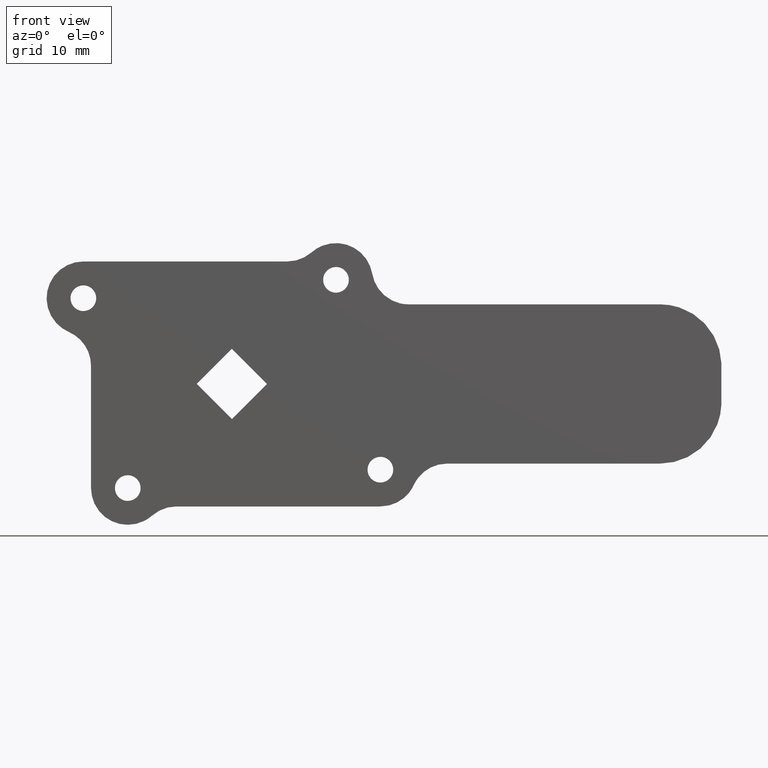
[diagram: clean part render]
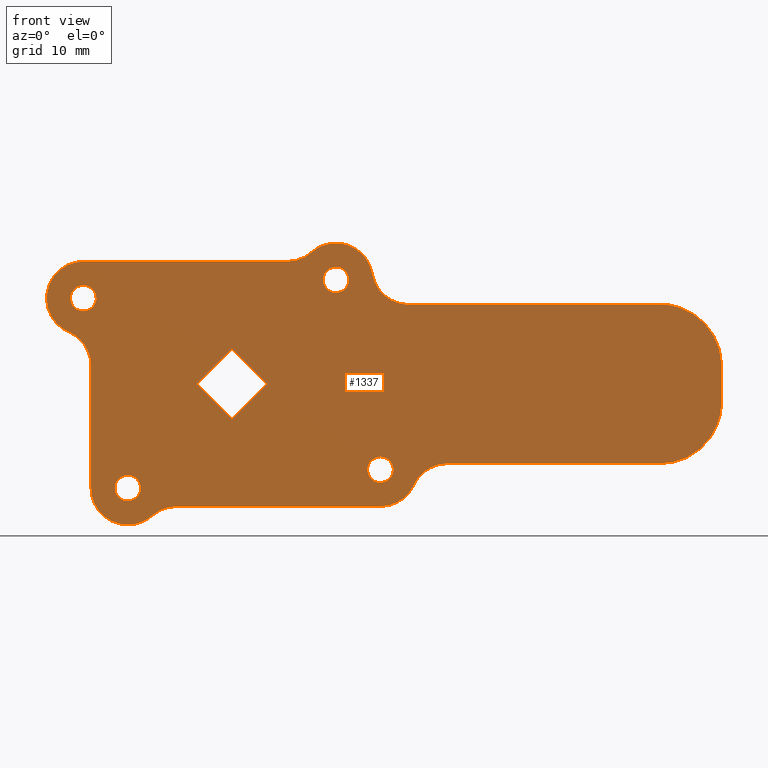
[diagram: same view with one face highlighted and labeled with its STEP entity id]
A machine part, front view. The second image highlights one B-rep face of the part: STEP entity #1337.
In plain terms, the highlighted face is a freeform B-spline surface patch.
Its self-contained STEP definition (entity closure, byte-faithful):
#96=CARTESIAN_POINT('',(19.093526400827368,-3.200000000000000,16.835235898816560));
#97=VERTEX_POINT('',#96);
#103=CARTESIAN_POINT('',(17.0,-3.200000000000000,19.100000000000001));
#104=VERTEX_POINT('',#103);
#105=CARTESIAN_POINT('',(19.093526400827368,-3.200000000000000,16.835235898816556));
#106=CARTESIAN_POINT('',(19.100000000000005,-3.200000000000001,16.917490775128208));
#107=CARTESIAN_POINT('',(19.100000000000001,-3.200000000000000,17.0));
#108=CARTESIAN_POINT('',(19.100000000000001,-3.200000000000000,19.100000000000001));
#109=CARTESIAN_POINT('',(17.0,-3.200000000000000,19.100000000000001));
#117=(BOUNDED_CURVE()B_SPLINE_CURVE(2,(#105,#106,#107,#108,#109),.UNSPECIFIED.,.F.,.U.)B_SPLINE_CURVE_WITH_KNOTS((3,2,3),(0.736331300607388,0.750000000000000,1.0),.UNSPECIFIED.)CURVE()GEOMETRIC_REPRESENTATION_ITEM()RATIONAL_B_SPLINE_CURVE((0.969723356118853,0.983986122551618,1.0,0.707106781186548,1.0))REPRESENTATION_ITEM(''));
#118=EDGE_CURVE('',#97,#104,#117,.T.);
#120=CARTESIAN_POINT('',(14.906473599172630,-3.200000000000000,17.164764101183440));
#121=VERTEX_POINT('',#120);
#122=CARTESIAN_POINT('',(17.0,-3.200000000000000,19.100000000000001));
#123=CARTESIAN_POINT('',(15.058779967806050,-3.200000000000000,19.099999999999994));
#124=CARTESIAN_POINT('',(14.906473599172630,-3.200000000000001,17.164764101183444));
#132=(BOUNDED_CURVE()B_SPLINE_CURVE(2,(#122,#123,#124),.UNSPECIFIED.,.F.,.U.)B_SPLINE_CURVE_WITH_KNOTS((3,3),(0.0,0.236331300607388),.UNSPECIFIED.)CURVE()GEOMETRIC_REPRESENTATION_ITEM()RATIONAL_B_SPLINE_CURVE((1.0,0.723120658634930,0.969723356118852))REPRESENTATION_ITEM(''));
#133=EDGE_CURVE('',#104,#121,#132,.T.);
#179=CARTESIAN_POINT('',(17.0,-3.200000000000000,14.900000000000000));
#180=VERTEX_POINT('',#179);
#181=CARTESIAN_POINT('',(14.906473599172630,-3.200000000000001,17.164764101183444));
#182=CARTESIAN_POINT('',(14.899999999999999,-3.200000000000000,17.082509224871799));
#183=CARTESIAN_POINT('',(14.900000000000000,-3.200000000000000,17.0));
#184=CARTESIAN_POINT('',(14.900000000000002,-3.200000000000000,14.900000000000002));
#185=CARTESIAN_POINT('',(17.0,-3.200000000000000,14.900000000000000));
#193=(BOUNDED_CURVE()B_SPLINE_CURVE(2,(#181,#182,#183,#184,#185),.UNSPECIFIED.,.F.,.U.)B_SPLINE_CURVE_WITH_KNOTS((3,2,3),(0.236331300607388,0.250000000000000,0.500000000000000),.UNSPECIFIED.)CURVE()GEOMETRIC_REPRESENTATION_ITEM()RATIONAL_B_SPLINE_CURVE((0.969723356118852,0.983986122551618,1.0,0.707106781186548,1.0))REPRESENTATION_ITEM(''));
#194=EDGE_CURVE('',#121,#180,#193,.T.);
#196=CARTESIAN_POINT('',(17.0,-3.200000000000000,14.900000000000000));
#197=CARTESIAN_POINT('',(18.941220032193968,-3.200000000000000,14.900000000000002));
#198=CARTESIAN_POINT('',(19.093526400827372,-3.200000000000000,16.835235898816553));
#206=(BOUNDED_CURVE()B_SPLINE_CURVE(2,(#196,#197,#198),.UNSPECIFIED.,.F.,.U.)B_SPLINE_CURVE_WITH_KNOTS((3,3),(0.500000000000000,0.736331300607389),.UNSPECIFIED.)CURVE()GEOMETRIC_REPRESENTATION_ITEM()RATIONAL_B_SPLINE_CURVE((1.0,0.723120658634929,0.969723356118853))REPRESENTATION_ITEM(''));
#207=EDGE_CURVE('',#180,#97,#206,.T.);
#278=CARTESIAN_POINT('',(-14.906473599172630,-3.200000000000000,-17.164764101183440));
#279=VERTEX_POINT('',#278);
#285=CARTESIAN_POINT('',(-17.0,-3.200000000000000,-14.900000000000000));
#286=VERTEX_POINT('',#285);
#287=CARTESIAN_POINT('',(-14.906473599172626,-3.200000000000000,-17.164764101183447));
#288=CARTESIAN_POINT('',(-14.900000000000006,-3.199999999999999,-17.082509224871796));
#289=CARTESIAN_POINT('',(-14.900000000000000,-3.200000000000000,-17.0));
#290=CARTESIAN_POINT('',(-14.900000000000002,-3.200000000000000,-14.900000000000002));
#291=CARTESIAN_POINT('',(-17.0,-3.200000000000000,-14.900000000000000));
#299=(BOUNDED_CURVE()B_SPLINE_CURVE(2,(#287,#288,#289,#290,#291),.UNSPECIFIED.,.F.,.U.)B_SPLINE_CURVE_WITH_KNOTS((3,2,3),(0.736331300607388,0.750000000000000,1.0),.UNSPECIFIED.)CURVE()GEOMETRIC_REPRESENTATION_ITEM()RATIONAL_B_SPLINE_CURVE((0.969723356118852,0.983986122551618,1.0,0.707106781186548,1.0))REPRESENTATION_ITEM(''));
#300=EDGE_CURVE('',#279,#286,#299,.T.);
#302=CARTESIAN_POINT('',(-19.093526400827368,-3.200000000000000,-16.835235898816560));
#303=VERTEX_POINT('',#302);
#304=CARTESIAN_POINT('',(-17.0,-3.200000000000000,-14.900000000000000));
#305=CARTESIAN_POINT('',(-18.941220032193957,-3.199999999999999,-14.900000000000009));
#306=CARTESIAN_POINT('',(-19.093526400827376,-3.200000000000000,-16.835235898816556));
#314=(BOUNDED_CURVE()B_SPLINE_CURVE(2,(#304,#305,#306),.UNSPECIFIED.,.F.,.U.)B_SPLINE_CURVE_WITH_KNOTS((3,3),(0.0,0.236331300607388),.UNSPECIFIED.)CURVE()GEOMETRIC_REPRESENTATION_ITEM()RATIONAL_B_SPLINE_CURVE((1.0,0.723120658634930,0.969723356118852))REPRESENTATION_ITEM(''));
#315=EDGE_CURVE('',#286,#303,#314,.T.);
#361=CARTESIAN_POINT('',(-17.0,-3.200000000000000,-19.100000000000001));
#362=VERTEX_POINT('',#361);
#363=CARTESIAN_POINT('',(-19.093526400827376,-3.200000000000000,-16.835235898816556));
#364=CARTESIAN_POINT('',(-19.100000000000009,-3.200000000000000,-16.917490775128211));
#365=CARTESIAN_POINT('',(-19.100000000000001,-3.200000000000000,-17.0));
#366=CARTESIAN_POINT('',(-19.100000000000001,-3.200000000000000,-19.100000000000001));
#367=CARTESIAN_POINT('',(-17.0,-3.200000000000000,-19.100000000000001));
#375=(BOUNDED_CURVE()B_SPLINE_CURVE(2,(#363,#364,#365,#366,#367),.UNSPECIFIED.,.F.,.U.)B_SPLINE_CURVE_WITH_KNOTS((3,2,3),(0.236331300607388,0.250000000000000,0.500000000000000),.UNSPECIFIED.)CURVE()GEOMETRIC_REPRESENTATION_ITEM()RATIONAL_B_SPLINE_CURVE((0.969723356118852,0.983986122551618,1.0,0.707106781186548,1.0))REPRESENTATION_ITEM(''));
#376=EDGE_CURVE('',#303,#362,#375,.T.);
#378=CARTESIAN_POINT('',(-17.0,-3.200000000000000,-19.100000000000001));
#379=CARTESIAN_POINT('',(-15.058779967806034,-3.200000000000000,-19.100000000000001));
#380=CARTESIAN_POINT('',(-14.906473599172632,-3.200000000000000,-17.164764101183440));
#388=(BOUNDED_CURVE()B_SPLINE_CURVE(2,(#378,#379,#380),.UNSPECIFIED.,.F.,.U.)B_SPLINE_CURVE_WITH_KNOTS((3,3),(0.500000000000000,0.736331300607389),.UNSPECIFIED.)CURVE()GEOMETRIC_REPRESENTATION_ITEM()RATIONAL_B_SPLINE_CURVE((1.0,0.723120658634929,0.969723356118853))REPRESENTATION_ITEM(''));
#389=EDGE_CURVE('',#362,#279,#388,.T.);
#460=CARTESIAN_POINT('',(-22.156473599172632,-3.200000000000000,13.835235898816361));
#461=VERTEX_POINT('',#460);
#467=CARTESIAN_POINT('',(-24.250000000000000,-3.200000000000000,16.099999999999799));
#468=VERTEX_POINT('',#467);
#469=CARTESIAN_POINT('',(-22.156473599172632,-3.200000000000000,13.835235898816354));
#470=CARTESIAN_POINT('',(-22.150000000000002,-3.200000000000000,13.917490775128009));
#471=CARTESIAN_POINT('',(-22.149999999999999,-3.200000000000000,13.999999999999799));
#472=CARTESIAN_POINT('',(-22.150000000000002,-3.200000000000000,16.099999999999795));
#473=CARTESIAN_POINT('',(-24.250000000000000,-3.200000000000000,16.099999999999799));
#481=(BOUNDED_CURVE()B_SPLINE_CURVE(2,(#469,#470,#471,#472,#473),.UNSPECIFIED.,.F.,.U.)B_SPLINE_CURVE_WITH_KNOTS((3,2,3),(0.736331300607388,0.750000000000000,1.0),.UNSPECIFIED.)CURVE()GEOMETRIC_REPRESENTATION_ITEM()RATIONAL_B_SPLINE_CURVE((0.969723356118852,0.983986122551618,1.0,0.707106781186548,1.0))REPRESENTATION_ITEM(''));
#482=EDGE_CURVE('',#461,#468,#481,.T.);
#484=CARTESIAN_POINT('',(-26.343526400827368,-3.200000000000000,14.164764101183250));
#485=VERTEX_POINT('',#484);
#486=CARTESIAN_POINT('',(-24.250000000000000,-3.200000000000000,16.099999999999799));
#487=CARTESIAN_POINT('',(-26.191220032193964,-3.200000000000000,16.099999999999806));
#488=CARTESIAN_POINT('',(-26.343526400827376,-3.200000000000000,14.164764101183247));
#496=(BOUNDED_CURVE()B_SPLINE_CURVE(2,(#486,#487,#488),.UNSPECIFIED.,.F.,.U.)B_SPLINE_CURVE_WITH_KNOTS((3,3),(0.0,0.236331300607388),.UNSPECIFIED.)CURVE()GEOMETRIC_REPRESENTATION_ITEM()RATIONAL_B_SPLINE_CURVE((1.0,0.723120658634930,0.969723356118852))REPRESENTATION_ITEM(''));
#497=EDGE_CURVE('',#468,#485,#496,.T.);
#543=CARTESIAN_POINT('',(-24.250000000000000,-3.200000000000000,11.899999999999800));
#544=VERTEX_POINT('',#543);
#545=CARTESIAN_POINT('',(-26.343526400827372,-3.200000000000001,14.164764101183245));
#546=CARTESIAN_POINT('',(-26.350000000000001,-3.200000000000000,14.082509224871595));
#547=CARTESIAN_POINT('',(-26.350000000000001,-3.200000000000000,13.999999999999799));
#548=CARTESIAN_POINT('',(-26.350000000000005,-3.200000000000000,11.899999999999800));
#549=CARTESIAN_POINT('',(-24.250000000000000,-3.200000000000000,11.899999999999800));
#557=(BOUNDED_CURVE()B_SPLINE_CURVE(2,(#545,#546,#547,#548,#549),.UNSPECIFIED.,.F.,.U.)B_SPLINE_CURVE_WITH_KNOTS((3,2,3),(0.236331300607388,0.250000000000000,0.500000000000000),.UNSPECIFIED.)CURVE()GEOMETRIC_REPRESENTATION_ITEM()RATIONAL_B_SPLINE_CURVE((0.969723356118852,0.983986122551618,1.0,0.707106781186548,1.0))REPRESENTATION_ITEM(''));
#558=EDGE_CURVE('',#485,#544,#557,.T.);
#560=CARTESIAN_POINT('',(-24.250000000000000,-3.200000000000000,11.899999999999800));
#561=CARTESIAN_POINT('',(-22.308779967806036,-3.200000000000000,11.899999999999798));
#562=CARTESIAN_POINT('',(-22.156473599172628,-3.200000000000000,13.835235898816356));
#570=(BOUNDED_CURVE()B_SPLINE_CURVE(2,(#560,#561,#562),.UNSPECIFIED.,.F.,.U.)B_SPLINE_CURVE_WITH_KNOTS((3,3),(0.500000000000000,0.736331300607389),.UNSPECIFIED.)CURVE()GEOMETRIC_REPRESENTATION_ITEM()RATIONAL_B_SPLINE_CURVE((1.0,0.723120658634929,0.969723356118853))REPRESENTATION_ITEM(''));
#571=EDGE_CURVE('',#544,#461,#570,.T.);
#642=CARTESIAN_POINT('',(26.343526400827368,-3.200000000000000,-14.164764101183451));
#643=VERTEX_POINT('',#642);
#649=CARTESIAN_POINT('',(24.250000000000000,-3.200000000000000,-11.900000000000000));
#650=VERTEX_POINT('',#649);
#651=CARTESIAN_POINT('',(26.343526400827372,-3.200000000000000,-14.164764101183447));
#652=CARTESIAN_POINT('',(26.350000000000001,-3.200000000000000,-14.082509224871794));
#653=CARTESIAN_POINT('',(26.350000000000001,-3.200000000000000,-14.0));
#654=CARTESIAN_POINT('',(26.350000000000005,-3.200000000000000,-11.900000000000000));
#655=CARTESIAN_POINT('',(24.250000000000000,-3.200000000000000,-11.900000000000000));
#663=(BOUNDED_CURVE()B_SPLINE_CURVE(2,(#651,#652,#653,#654,#655),.UNSPECIFIED.,.F.,.U.)B_SPLINE_CURVE_WITH_KNOTS((3,2,3),(0.736331300607388,0.750000000000000,1.0),.UNSPECIFIED.)CURVE()GEOMETRIC_REPRESENTATION_ITEM()RATIONAL_B_SPLINE_CURVE((0.969723356118852,0.983986122551617,1.0,0.707106781186548,1.0))REPRESENTATION_ITEM(''));
#664=EDGE_CURVE('',#643,#650,#663,.T.);
#666=CARTESIAN_POINT('',(22.156473599172632,-3.200000000000000,-13.835235898816560));
#667=VERTEX_POINT('',#666);
#668=CARTESIAN_POINT('',(24.250000000000000,-3.200000000000000,-11.900000000000000));
#669=CARTESIAN_POINT('',(22.308779967806050,-3.200000000000000,-11.900000000000000));
#670=CARTESIAN_POINT('',(22.156473599172632,-3.200000000000000,-13.835235898816556));
#678=(BOUNDED_CURVE()B_SPLINE_CURVE(2,(#668,#669,#670),.UNSPECIFIED.,.F.,.U.)B_SPLINE_CURVE_WITH_KNOTS((3,3),(0.0,0.236331300607388),.UNSPECIFIED.)CURVE()GEOMETRIC_REPRESENTATION_ITEM()RATIONAL_B_SPLINE_CURVE((1.0,0.723120658634930,0.969723356118852))REPRESENTATION_ITEM(''));
#679=EDGE_CURVE('',#650,#667,#678,.T.);
#725=CARTESIAN_POINT('',(24.250000000000000,-3.200000000000000,-16.100000000000001));
#726=VERTEX_POINT('',#725);
#727=CARTESIAN_POINT('',(22.156473599172632,-3.200000000000000,-13.835235898816556));
#728=CARTESIAN_POINT('',(22.149999999999999,-3.200000000000000,-13.917490775128204));
#729=CARTESIAN_POINT('',(22.149999999999999,-3.200000000000000,-14.0));
#730=CARTESIAN_POINT('',(22.150000000000002,-3.200000000000000,-16.100000000000005));
#731=CARTESIAN_POINT('',(24.250000000000000,-3.200000000000000,-16.100000000000001));
#739=(BOUNDED_CURVE()B_SPLINE_CURVE(2,(#727,#728,#729,#730,#731),.UNSPECIFIED.,.F.,.U.)B_SPLINE_CURVE_WITH_KNOTS((3,2,3),(0.236331300607388,0.250000000000000,0.500000000000000),.UNSPECIFIED.)CURVE()GEOMETRIC_REPRESENTATION_ITEM()RATIONAL_B_SPLINE_CURVE((0.969723356118852,0.983986122551618,1.0,0.707106781186548,1.0))REPRESENTATION_ITEM(''));
#740=EDGE_CURVE('',#667,#726,#739,.T.);
#742=CARTESIAN_POINT('',(24.250000000000000,-3.200000000000000,-16.100000000000001));
#743=CARTESIAN_POINT('',(26.191220032193961,-3.200000000000000,-16.099999999999998));
#744=CARTESIAN_POINT('',(26.343526400827379,-3.200000000000000,-14.164764101183449));
#752=(BOUNDED_CURVE()B_SPLINE_CURVE(2,(#742,#743,#744),.UNSPECIFIED.,.F.,.U.)B_SPLINE_CURVE_WITH_KNOTS((3,3),(0.500000000000000,0.736331300607389),.UNSPECIFIED.)CURVE()GEOMETRIC_REPRESENTATION_ITEM()RATIONAL_B_SPLINE_CURVE((1.0,0.723120658634929,0.969723356118853))REPRESENTATION_ITEM(''));
#753=EDGE_CURVE('',#726,#643,#752,.T.);
#1055=CARTESIAN_POINT('',(-35.755574152783460,-3.200000000000000,25.296898796748550));
#1056=CARTESIAN_POINT('',(85.506923528599273,-3.200000000000000,25.296898796748550));
#1057=CARTESIAN_POINT('',(-35.755574152783460,-3.200000000000000,-25.293881787364111));
#1058=CARTESIAN_POINT('',(85.506923528599273,-3.200000000000000,-25.293881787364111));
#1059=B_SPLINE_SURFACE_WITH_KNOTS('',1,1,((#1055,#1057),(#1056,#1058)),.UNSPECIFIED.,.F.,.F.,.U.,(2,2),(2,2),(0.0,121.262497681382700),(0.0,50.590780584112657),.UNSPECIFIED.);
#1060=CARTESIAN_POINT('',(-24.250000000000000,-3.200000000000000,20.0));
#1061=VERTEX_POINT('',#1060);
#1062=CARTESIAN_POINT('',(-26.624999993717051,-3.200000000000000,8.490065787158050));
#1063=VERTEX_POINT('',#1062);
#1064=CARTESIAN_POINT('',(-24.250000000000000,-3.200000000000000,20.0));
#1065=CARTESIAN_POINT('',(-29.138340524028237,-3.200000000000001,19.999999999999797));
#1066=CARTESIAN_POINT('',(-30.126206483652979,-3.200000000000000,15.212516953066750));
#1067=CARTESIAN_POINT('',(-31.114072443277720,-3.200000000000001,10.425033906133697));
#1068=CARTESIAN_POINT('',(-26.624999993717051,-3.200000000000000,8.490065787158052));
#1076=(BOUNDED_CURVE()B_SPLINE_CURVE(2,(#1064,#1065,#1066,#1067,#1068),.UNSPECIFIED.,.F.,.U.)B_SPLINE_CURVE_WITH_KNOTS((3,2,3),(0.0,0.500000000000000,1.0),.UNSPECIFIED.)CURVE()GEOMETRIC_REPRESENTATION_ITEM()RATIONAL_B_SPLINE_CURVE((1.0,0.775269681738068,1.0,0.775269681738068,1.0))REPRESENTATION_ITEM(''));
#1077=EDGE_CURVE('',#1061,#1063,#1076,.T.);
#1078=ORIENTED_EDGE('',*,*,#1077,.T.);
#1079=CARTESIAN_POINT('',(-22.999999987434101,-3.200000000000000,2.980131574316295));
#1080=VERTEX_POINT('',#1079);
#1081=CARTESIAN_POINT('',(-22.999999987434101,-3.200000000000000,2.980131574316295));
#1082=CARTESIAN_POINT('',(-22.999999987434098,-3.200000000000001,6.927547132746373));
#1083=CARTESIAN_POINT('',(-26.624999993717051,-3.200000000000000,8.490065787158043));
#1091=(BOUNDED_CURVE()B_SPLINE_CURVE(2,(#1081,#1082,#1083),.UNSPECIFIED.,.F.,.U.)CURVE()GEOMETRIC_REPRESENTATION_ITEM()QUASI_UNIFORM_CURVE()RATIONAL_B_SPLINE_CURVE((1.0,0.835414068676777,1.0))REPRESENTATION_ITEM(''));
#1092=EDGE_CURVE('',#1080,#1063,#1091,.T.);
#1093=ORIENTED_EDGE('',*,*,#1092,.F.);
#1094=CARTESIAN_POINT('',(-22.999999987434101,-3.200000000000000,-17.000000425683702));
#1095=VERTEX_POINT('',#1094);
#1096=CARTESIAN_POINT('',(-22.999999987434101,-3.200000000000000,2.980131574316295));
#1097=CARTESIAN_POINT('',(-22.999999987434101,-3.200000000000000,-17.000000425683702));
#1098=QUASI_UNIFORM_CURVE('',1,(#1096,#1097),.UNSPECIFIED.,.F.,.U.);
#1099=EDGE_CURVE('',#1080,#1095,#1098,.T.);
#1100=ORIENTED_EDGE('',*,*,#1099,.T.);
#1101=CARTESIAN_POINT('',(-13.031373029419321,-3.200000000000000,-21.500000433252399));
#1102=VERTEX_POINT('',#1101);
#1103=CARTESIAN_POINT('',(-22.999999987434101,-3.200000000000000,-17.000000425683702));
#1104=CARTESIAN_POINT('',(-22.999999987434101,-3.199999999999999,-20.874508288017651));
#1105=CARTESIAN_POINT('',(-19.468626959245690,-3.200000000000000,-22.468627389926588));
#1106=CARTESIAN_POINT('',(-15.937253931057272,-3.199999999999999,-24.062746491835529));
#1107=CARTESIAN_POINT('',(-13.031373029419321,-3.200000000000000,-21.500000433252410));
#1115=(BOUNDED_CURVE()B_SPLINE_CURVE(2,(#1103,#1104,#1105,#1106,#1107),.UNSPECIFIED.,.F.,.U.)B_SPLINE_CURVE_WITH_KNOTS((3,2,3),(0.0,0.500000000000000,1.0),.UNSPECIFIED.)CURVE()GEOMETRIC_REPRESENTATION_ITEM()RATIONAL_B_SPLINE_CURVE((1.0,0.840070779349950,1.0,0.840070779349950,1.0))REPRESENTATION_ITEM(''));
#1116=EDGE_CURVE('',#1095,#1102,#1115,.T.);
#1117=ORIENTED_EDGE('',*,*,#1116,.T.);
#1118=CARTESIAN_POINT('',(-9.062746071404551,-3.200000000000000,-20.000000440821150));
#1119=VERTEX_POINT('',#1118);
#1120=CARTESIAN_POINT('',(-9.062746071404551,-3.200000000000000,-20.000000440821150));
#1121=CARTESIAN_POINT('',(-11.330532902921149,-3.200000000000000,-20.000000440821147));
#1122=CARTESIAN_POINT('',(-13.031373029419299,-3.200000000000000,-21.500000433252421));
#1130=(BOUNDED_CURVE()B_SPLINE_CURVE(2,(#1120,#1121,#1122),.UNSPECIFIED.,.F.,.U.)CURVE()GEOMETRIC_REPRESENTATION_ITEM()QUASI_UNIFORM_CURVE()RATIONAL_B_SPLINE_CURVE((1.0,0.935414347030623,1.0))REPRESENTATION_ITEM(''));
#1131=EDGE_CURVE('',#1119,#1102,#1130,.T.);
#1132=ORIENTED_EDGE('',*,*,#1131,.F.);
#1133=CARTESIAN_POINT('',(24.249999928595351,-3.200000000000000,-20.000000440821150));
#1134=VERTEX_POINT('',#1133);
#1135=CARTESIAN_POINT('',(-9.062746071404551,-3.200000000000000,-20.000000440821150));
#1136=CARTESIAN_POINT('',(24.249999928595351,-3.200000000000000,-20.000000440821150));
#1137=QUASI_UNIFORM_CURVE('',1,(#1135,#1136),.UNSPECIFIED.,.F.,.U.);
#1138=EDGE_CURVE('',#1119,#1134,#1137,.T.);
#1139=ORIENTED_EDGE('',*,*,#1138,.T.);
#1140=CARTESIAN_POINT('',(29.704356001279251,-3.200000000000000,-16.500000407296351));
#1141=VERTEX_POINT('',#1140);
#1142=CARTESIAN_POINT('',(24.249999928595351,-3.200000000000000,-20.000000440821140));
#1143=CARTESIAN_POINT('',(28.100133642145749,-3.200000000000001,-20.000000440821136));
#1144=CARTESIAN_POINT('',(29.704356001279258,-3.200000000000000,-16.500000407296358));
#1152=(BOUNDED_CURVE()B_SPLINE_CURVE(2,(#1142,#1143,#1144),.UNSPECIFIED.,.F.,.U.)CURVE()GEOMETRIC_REPRESENTATION_ITEM()QUASI_UNIFORM_CURVE()RATIONAL_B_SPLINE_CURVE((1.0,0.841625409870449,1.0))REPRESENTATION_ITEM(''));
#1153=EDGE_CURVE('',#1134,#1141,#1152,.T.);
#1154=ORIENTED_EDGE('',*,*,#1153,.T.);
#1155=CARTESIAN_POINT('',(35.158712490147600,-3.200000000000000,-13.000000061986681));
#1156=VERTEX_POINT('',#1155);
#1157=CARTESIAN_POINT('',(35.158712490147607,-3.200000000000000,-13.000000061986711));
#1158=CARTESIAN_POINT('',(31.308578341594821,-3.200000000000000,-12.999999886627148));
#1159=CARTESIAN_POINT('',(29.704356001279240,-3.200000000000000,-16.500000407296341));
#1167=(BOUNDED_CURVE()B_SPLINE_CURVE(2,(#1157,#1158,#1159),.UNSPECIFIED.,.F.,.U.)CURVE()GEOMETRIC_REPRESENTATION_ITEM()QUASI_UNIFORM_CURVE()RATIONAL_B_SPLINE_CURVE((1.0,0.841625382135877,1.0))REPRESENTATION_ITEM(''));
#1168=EDGE_CURVE('',#1156,#1141,#1167,.T.);
#1169=ORIENTED_EDGE('',*,*,#1168,.F.);
#1170=CARTESIAN_POINT('',(69.935685229771096,-3.200000000000000,-13.000000061986681));
#1171=VERTEX_POINT('',#1170);
#1172=CARTESIAN_POINT('',(35.158712490147600,-3.200000000000000,-13.000000061986681));
#1173=CARTESIAN_POINT('',(69.935685229771096,-3.200000000000000,-13.000000061986681));
#1174=QUASI_UNIFORM_CURVE('',1,(#1172,#1173),.UNSPECIFIED.,.F.,.U.);
#1175=EDGE_CURVE('',#1156,#1171,#1174,.T.);
#1176=ORIENTED_EDGE('',*,*,#1175,.T.);
#1177=CARTESIAN_POINT('',(79.926497335431591,-3.200000000000000,-3.428571490558110));
#1178=VERTEX_POINT('',#1177);
#1179=CARTESIAN_POINT('',(69.935685229771096,-3.200000000000000,-13.000000061986681));
#1180=CARTESIAN_POINT('',(79.515916016020881,-3.200000000000000,-13.000000061986682));
#1181=CARTESIAN_POINT('',(79.926497335431591,-3.200000000000000,-3.428571490558111));
#1189=(BOUNDED_CURVE()B_SPLINE_CURVE(2,(#1179,#1180,#1181),.UNSPECIFIED.,.F.,.U.)CURVE()GEOMETRIC_REPRESENTATION_ITEM()QUASI_UNIFORM_CURVE()RATIONAL_B_SPLINE_CURVE((1.0,0.722100111777149,1.0))REPRESENTATION_ITEM(''));
#1190=EDGE_CURVE('',#1171,#1178,#1189,.T.);
#1191=ORIENTED_EDGE('',*,*,#1190,.T.);
#1192=CARTESIAN_POINT('',(79.926497335431591,-3.200000000000000,3.428571366584855));
#1193=VERTEX_POINT('',#1192);
#1194=CARTESIAN_POINT('',(79.926497335431563,-3.200000000000000,-3.428571490558105));
#1195=CARTESIAN_POINT('',(80.073571240892107,-3.200000000000000,-0.000000061986611));
#1196=CARTESIAN_POINT('',(79.926497335431563,-3.200000000000000,3.428571366584841));
#1204=(BOUNDED_CURVE()B_SPLINE_CURVE(2,(#1194,#1195,#1196),.UNSPECIFIED.,.F.,.U.)CURVE()GEOMETRIC_REPRESENTATION_ITEM()QUASI_UNIFORM_CURVE()RATIONAL_B_SPLINE_CURVE((1.0,0.999081210566049,1.0))REPRESENTATION_ITEM(''));
#1205=EDGE_CURVE('',#1178,#1193,#1204,.T.);
#1206=ORIENTED_EDGE('',*,*,#1205,.T.);
#1207=CARTESIAN_POINT('',(69.935685229771096,-3.200000000000000,12.999999938013421));
#1208=VERTEX_POINT('',#1207);
#1209=CARTESIAN_POINT('',(79.926497335431591,-3.200000000000000,3.428571366584852));
#1210=CARTESIAN_POINT('',(79.515916016020881,-3.200000000000001,12.999999938013415));
#1211=CARTESIAN_POINT('',(69.935685229771096,-3.200000000000000,12.999999938013421));
#1219=(BOUNDED_CURVE()B_SPLINE_CURVE(2,(#1209,#1210,#1211),.UNSPECIFIED.,.F.,.U.)CURVE()GEOMETRIC_REPRESENTATION_ITEM()QUASI_UNIFORM_CURVE()RATIONAL_B_SPLINE_CURVE((1.0,0.722100111777150,1.0))REPRESENTATION_ITEM(''));
#1220=EDGE_CURVE('',#1193,#1208,#1219,.T.);
#1221=ORIENTED_EDGE('',*,*,#1220,.T.);
#1222=CARTESIAN_POINT('',(28.832159490147600,-3.200000000000000,12.999999938013421));
#1223=VERTEX_POINT('',#1222);
#1224=CARTESIAN_POINT('',(69.935685229771096,-3.200000000000000,12.999999938013421));
#1225=CARTESIAN_POINT('',(28.832159490147600,-3.200000000000000,12.999999938013421));
#1226=QUASI_UNIFORM_CURVE('',1,(#1224,#1225),.UNSPECIFIED.,.F.,.U.);
#1227=EDGE_CURVE('',#1208,#1223,#1226,.T.);
#1228=ORIENTED_EDGE('',*,*,#1227,.T.);
#1229=CARTESIAN_POINT('',(22.916079703088549,-3.200000000000000,17.999999961437901));
#1230=VERTEX_POINT('',#1229);
#1231=CARTESIAN_POINT('',(22.916079703088521,-3.200000000000000,17.999999961437890));
#1232=CARTESIAN_POINT('',(23.761233941413554,-3.200000000000000,12.999999938013397));
#1233=CARTESIAN_POINT('',(28.832159490147600,-3.200000000000000,12.999999938013399));
#1241=(BOUNDED_CURVE()B_SPLINE_CURVE(2,(#1231,#1232,#1233),.UNSPECIFIED.,.F.,.U.)CURVE()GEOMETRIC_REPRESENTATION_ITEM()QUASI_UNIFORM_CURVE()RATIONAL_B_SPLINE_CURVE((1.0,0.763762614548062,1.0))REPRESENTATION_ITEM(''));
#1242=EDGE_CURVE('',#1230,#1223,#1241,.T.);
#1243=ORIENTED_EDGE('',*,*,#1242,.F.);
#1244=CARTESIAN_POINT('',(13.031372958014700,-3.200000000000000,21.499999992431150));
#1245=VERTEX_POINT('',#1244);
#1246=CARTESIAN_POINT('',(22.916079703088531,-3.200000000000000,17.999999961437890));
#1247=CARTESIAN_POINT('',(22.328118228345623,-3.200000000000000,21.478427039214264));
#1248=CARTESIAN_POINT('',(19.002658944565361,-3.200000000000000,22.655913422621470));
#1249=CARTESIAN_POINT('',(15.677199660785096,-3.200000000000000,23.833399806028670));
#1250=CARTESIAN_POINT('',(13.031372958014710,-3.200000000000000,21.499999992431139));
#1258=(BOUNDED_CURVE()B_SPLINE_CURVE(2,(#1246,#1247,#1248,#1249,#1250),.UNSPECIFIED.,.F.,.U.)B_SPLINE_CURVE_WITH_KNOTS((3,2,3),(0.0,0.500000000000000,1.0),.UNSPECIFIED.)CURVE()GEOMETRIC_REPRESENTATION_ITEM()RATIONAL_B_SPLINE_CURVE((1.0,0.862037346963936,1.0,0.862037346963936,1.0))REPRESENTATION_ITEM(''));
#1259=EDGE_CURVE('',#1230,#1245,#1258,.T.);
#1260=ORIENTED_EDGE('',*,*,#1259,.T.);
#1261=CARTESIAN_POINT('',(9.062745999999788,-3.200000000000000,20.0));
#1262=VERTEX_POINT('',#1261);
#1263=CARTESIAN_POINT('',(9.062745999999788,-3.200000000000000,20.0));
#1264=CARTESIAN_POINT('',(11.330532831516484,-3.200000000000001,19.999999999999790));
#1265=CARTESIAN_POINT('',(13.031372958014700,-3.200000000000000,21.499999992431139));
#1273=(BOUNDED_CURVE()B_SPLINE_CURVE(2,(#1263,#1264,#1265),.UNSPECIFIED.,.F.,.U.)CURVE()GEOMETRIC_REPRESENTATION_ITEM()QUASI_UNIFORM_CURVE()RATIONAL_B_SPLINE_CURVE((1.0,0.935414347030622,1.0))REPRESENTATION_ITEM(''));
#1274=EDGE_CURVE('',#1262,#1245,#1273,.T.);
#1275=ORIENTED_EDGE('',*,*,#1274,.F.);
#1276=CARTESIAN_POINT('',(9.062745999999788,-3.200000000000000,20.0));
#1277=CARTESIAN_POINT('',(-24.250000000000000,-3.200000000000000,20.0));
#1278=QUASI_UNIFORM_CURVE('',1,(#1276,#1277),.UNSPECIFIED.,.F.,.U.);
#1279=EDGE_CURVE('',#1262,#1061,#1278,.T.);
#1280=ORIENTED_EDGE('',*,*,#1279,.T.);
#1281=EDGE_LOOP('',(#1078,#1093,#1100,#1117,#1132,#1139,#1154,#1169,#1176,#1191,#1206,#1221,#1228,#1243,#1260,#1275,#1280));
#1282=FACE_OUTER_BOUND('',#1281,.T.);
#1283=CARTESIAN_POINT('',(5.727564487131860,-3.200000000000000,0.000000049504934));
#1284=VERTEX_POINT('',#1283);
#1285=CARTESIAN_POINT('',(-0.000000049504948,-3.200000000000000,-5.727564487132030));
#1286=VERTEX_POINT('',#1285);
#1287=CARTESIAN_POINT('',(5.727564487131860,-3.200000000000000,0.000000049504934));
#1288=CARTESIAN_POINT('',(-0.000000049504948,-3.200000000000000,-5.727564487132030));
#1289=QUASI_UNIFORM_CURVE('',1,(#1287,#1288),.UNSPECIFIED.,.F.,.U.);
#1290=EDGE_CURVE('',#1284,#1286,#1289,.T.);
#1291=ORIENTED_EDGE('',*,*,#1290,.T.);
#1292=CARTESIAN_POINT('',(-5.727565388121960,-3.200000000000000,0.000000049504938));
#1293=VERTEX_POINT('',#1292);
#1294=CARTESIAN_POINT('',(-0.000000049504948,-3.200000000000000,-5.727564487132030));
#1295=CARTESIAN_POINT('',(-5.727565388121960,-3.200000000000000,0.000000049504938));
#1296=QUASI_UNIFORM_CURVE('',1,(#1294,#1295),.UNSPECIFIED.,.F.,.U.);
#1297=EDGE_CURVE('',#1286,#1293,#1296,.T.);
#1298=ORIENTED_EDGE('',*,*,#1297,.T.);
#1299=CARTESIAN_POINT('',(-0.000000049504951,-3.200000000000000,5.727565388121859));
#1300=VERTEX_POINT('',#1299);
#1301=CARTESIAN_POINT('',(-5.727565388121960,-3.200000000000000,0.000000049504938));
#1302=CARTESIAN_POINT('',(-0.000000049504951,-3.200000000000000,5.727565388121859));
#1303=QUASI_UNIFORM_CURVE('',1,(#1301,#1302),.UNSPECIFIED.,.F.,.U.);
#1304=EDGE_CURVE('',#1293,#1300,#1303,.T.);
#1305=ORIENTED_EDGE('',*,*,#1304,.T.);
#1306=CARTESIAN_POINT('',(-0.000000049504951,-3.200000000000000,5.727565388121859));
#1307=CARTESIAN_POINT('',(5.727564487131860,-3.200000000000000,0.000000049504934));
#1308=QUASI_UNIFORM_CURVE('',1,(#1306,#1307),.UNSPECIFIED.,.F.,.U.);
#1309=EDGE_CURVE('',#1300,#1284,#1308,.T.);
#1310=ORIENTED_EDGE('',*,*,#1309,.T.);
#1311=EDGE_LOOP('',(#1291,#1298,#1305,#1310));
#1312=FACE_BOUND('',#1311,.T.);
#1313=ORIENTED_EDGE('',*,*,#753,.F.);
#1314=ORIENTED_EDGE('',*,*,#740,.F.);
#1315=ORIENTED_EDGE('',*,*,#679,.F.);
#1316=ORIENTED_EDGE('',*,*,#664,.F.);
#1317=EDGE_LOOP('',(#1313,#1314,#1315,#1316));
#1318=FACE_BOUND('',#1317,.T.);
#1319=ORIENTED_EDGE('',*,*,#571,.F.);
#1320=ORIENTED_EDGE('',*,*,#558,.F.);
#1321=ORIENTED_EDGE('',*,*,#497,.F.);
#1322=ORIENTED_EDGE('',*,*,#482,.F.);
#1323=EDGE_LOOP('',(#1319,#1320,#1321,#1322));
#1324=FACE_BOUND('',#1323,.T.);
#1325=ORIENTED_EDGE('',*,*,#389,.F.);
#1326=ORIENTED_EDGE('',*,*,#376,.F.);
#1327=ORIENTED_EDGE('',*,*,#315,.F.);
#1328=ORIENTED_EDGE('',*,*,#300,.F.);
#1329=EDGE_LOOP('',(#1325,#1326,#1327,#1328));
#1330=FACE_BOUND('',#1329,.T.);
#1331=ORIENTED_EDGE('',*,*,#207,.F.);
#1332=ORIENTED_EDGE('',*,*,#194,.F.);
#1333=ORIENTED_EDGE('',*,*,#133,.F.);
#1334=ORIENTED_EDGE('',*,*,#118,.F.);
#1335=EDGE_LOOP('',(#1331,#1332,#1333,#1334));
#1336=FACE_BOUND('',#1335,.T.);
#1337=ADVANCED_FACE('',(#1282,#1312,#1318,#1324,#1330,#1336),#1059,.F.);